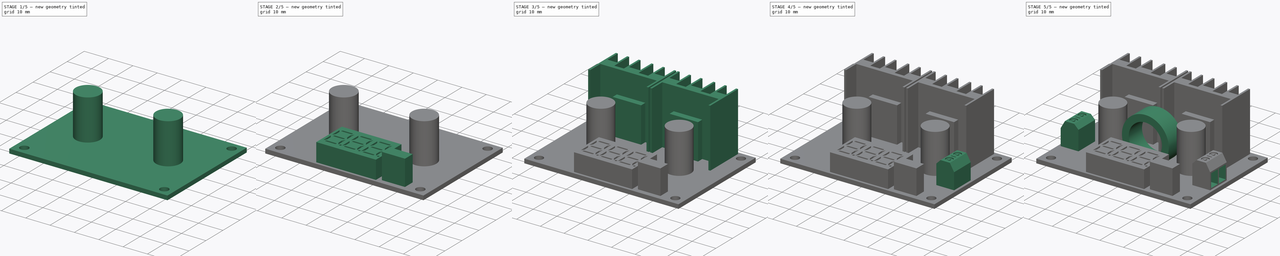
[diagram: build sequence overview — one tinted view per stage of 5, left to right]
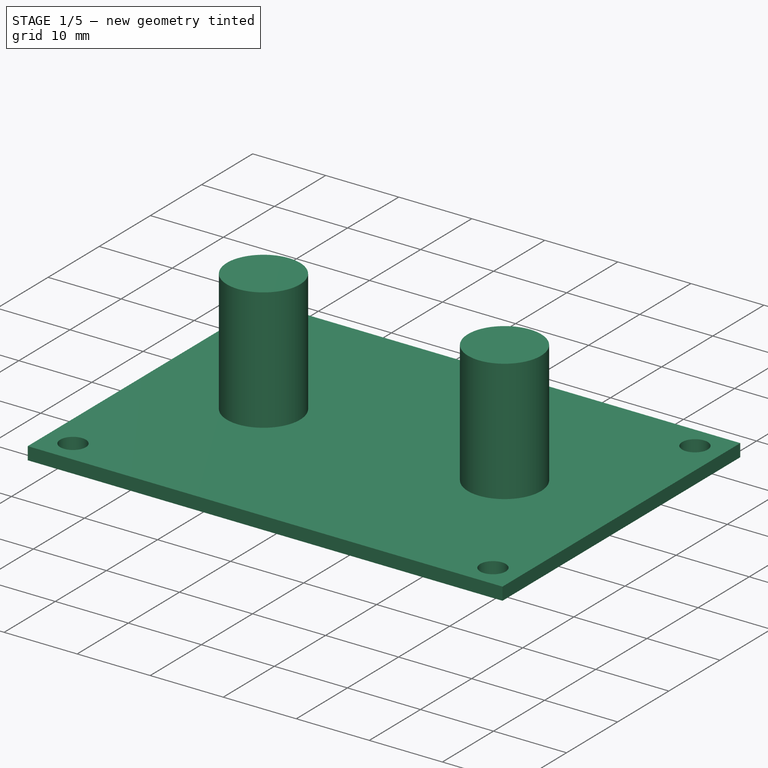
[diagram: stage 1 of 5 — iso view after this stage's code; geometry added in this stage tinted green]
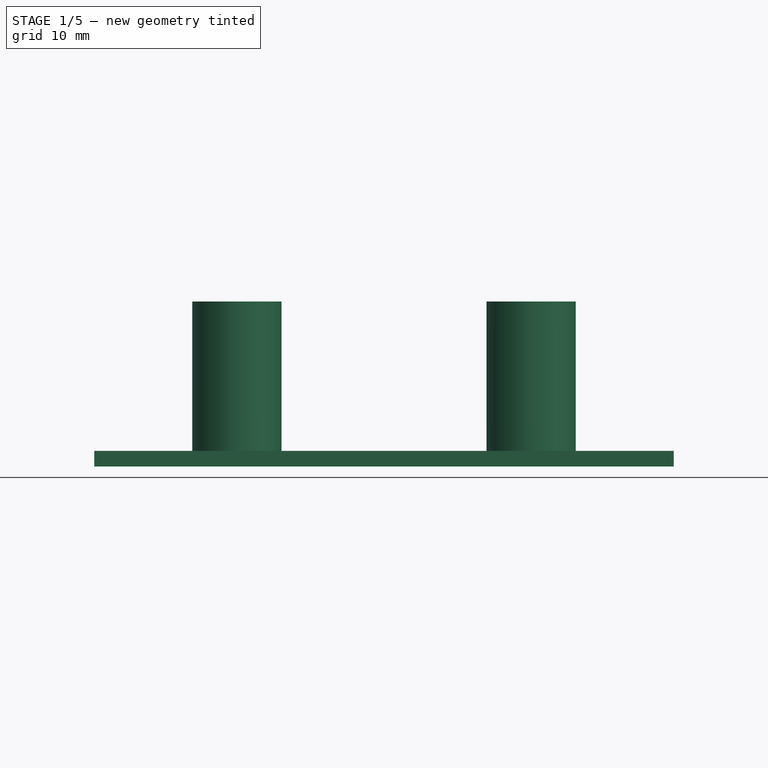
[diagram: stage 1 of 5 — front view after this stage's code; geometry added in this stage tinted green]
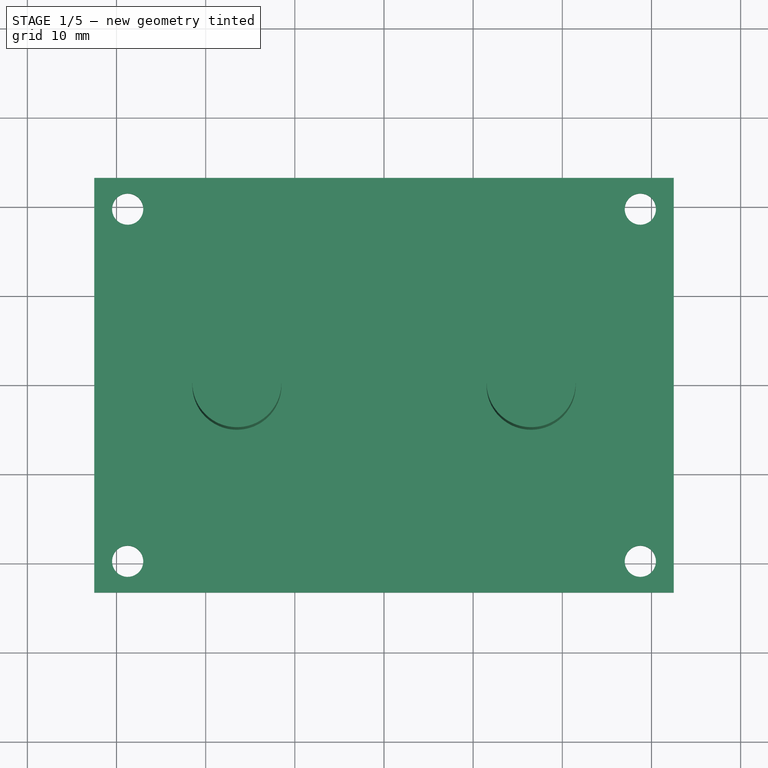
[diagram: stage 1 of 5 — top view after this stage's code; geometry added in this stage tinted green]
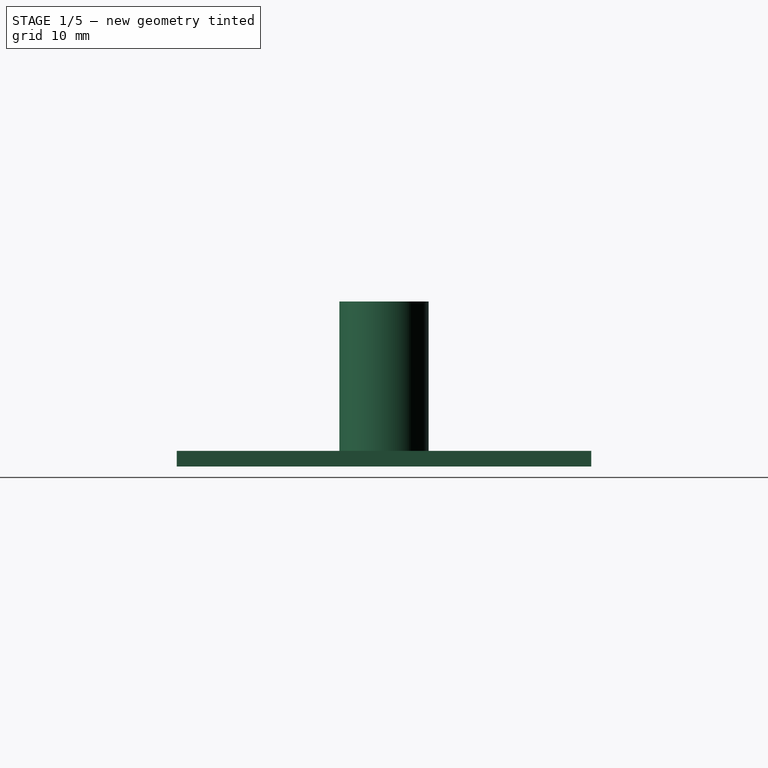
[diagram: stage 1 of 5 — right view after this stage's code; geometry added in this stage tinted green]
FCSTD DOCUMENT  (FreeCAD 1.0R39109 (Git))
Label: regulator_2
License: All rights reserved
LicenseURL: https://en.wikipedia.org/wiki/All_rights_reserved
objects: Sketcher::SketchObject×14, PartDesign::Pad×8, PartDesign::Pocket×6, PartDesign::Mirrored×2, PartDesign::LinearPattern×1, PartDesign::Body×1
note: 77 computed .brp shape members not serialized (recipe doc carries the construction recipe); baked Part::Feature solids carry a one-line shape summary decoded from their .brp

FEATURE [Sketcher::SketchObject] Sketch
  ArcFitTolerance = 1e-06
  AttachmentSupport = -> [XY_Plane]
  FullyConstrained = true
  MakeInternals = false
  MapMode = 5
  sketch-geometry (5):
    g0: LineSegment StartX=-32.5 StartY=23.25 StartZ=0 EndX=-32.5 EndY=-23.25 EndZ=0
    g1: LineSegment StartX=-32.5 StartY=-23.25 StartZ=0 EndX=32.5 EndY=-23.25 EndZ=0
    g2: LineSegment StartX=32.5 StartY=-23.25 StartZ=0 EndX=32.5 EndY=23.25 EndZ=0
    g3: LineSegment StartX=32.5 StartY=23.25 StartZ=0 EndX=-32.5 EndY=23.25 EndZ=0
    g4: GeomPoint [constr] X=0 Y=0 Z=0
  constraints (12):
    c: Coincident(g0,g1)
    c: Coincident(g1,g2)
    c: Coincident(g2,g3)
    c: Coincident(g3,g0)
    c: Vertical(g0)
    c: Vertical(g2)
    c: Horizontal(g1)
    c: Horizontal(g3)
    c: Symmetric(g2,g0,g4)
    c: Coincident(g4,g-1)
    c: DistanceX(g1,g1) = 65
    c: DistanceY(g2,g2) = 46.5
FEATURE [PartDesign::Pad] Pad
  Direction = (0,0,1)
  Length = 1.75
  Length2 = 10
  Profile = -> Sketch
  ReferenceAxis = -> Sketch [N_Axis]
  Refine = true
  Suppressed = false
  Type = 0
FEATURE [Sketcher::SketchObject] Sketch001
  ArcFitTolerance = 1e-06
  AttachmentSupport = -> [Pad]
  ExternalGeometry = -> [Pad]
  FullyConstrained = true
  MakeInternals = false
  MapMode = 5
  Placement = pos=(0,0,1.75) rot=(0,0,1;0rad)
  sketch-geometry (5):
    g0: Circle CenterX=-28.75 CenterY=19.75 CenterZ=0 NormalX=0 NormalY=0 NormalZ=1 AngleXU=0 Radius=1.75
    g1: Circle CenterX=28.75 CenterY=19.75 CenterZ=0 NormalX=0 NormalY=0 NormalZ=1 AngleXU=0 Radius=1.75
    g2: Circle CenterX=-28.75 CenterY=-19.75 CenterZ=0 NormalX=0 NormalY=0 NormalZ=1 AngleXU=0 Radius=1.75
    g3: Circle CenterX=28.75 CenterY=-19.75 CenterZ=0 NormalX=0 NormalY=0 NormalZ=1 AngleXU=0 Radius=1.75
    g4: GeomPoint X=-28.75 Y=21.5 Z=0
  constraints (13):
    c: Vertical(g2,g0)
    c: Horizontal(g2,g3)
    c: Vertical(g3,g1)
    c: Horizontal(g1,g0)
    c: Equal(g0,g2)
    c: Equal(g0,g3)
    c: Radius(g0) = 1.75
    c: Equal(g1,g0)
    c: DistanceX(g0,g1) = 57.5
    c: PointOnObject(g4,g0)
    c: Vertical(g0,g4)
    c: DistanceY(g4,g-3) = 1.75
    c: Symmetric(g0,g3,g-1)
FEATURE [PartDesign::Pocket] Pocket
  BaseFeature = -> Pad
  Direction = (0,0,-1)
  Length = 5
  Length2 = 5
  Profile = -> Sketch001
  ReferenceAxis = -> Sketch001 [N_Axis]
  Refine = true
  Suppressed = false
  Type = 1
FEATURE [Sketcher::SketchObject] Sketch002
  ArcFitTolerance = 1e-06
  AttachmentSupport = -> [Pocket]
  ExternalGeometry = -> [Pocket]
  FullyConstrained = true
  MakeInternals = false
  MapMode = 5
  Placement = pos=(0,0,1.75) rot=(0,0,1;0rad)
  sketch-geometry (2):
    g0: Circle CenterX=-16.5 CenterY=0 CenterZ=0 NormalX=0 NormalY=0 NormalZ=1 AngleXU=0 Radius=5
    g1: Circle CenterX=16.5 CenterY=0 CenterZ=0 NormalX=0 NormalY=0 NormalZ=1 AngleXU=0 Radius=5
  constraints (5):
    c: PointOnObject(g0,g-1)
    c: Equal(g1,g0)
    c: Symmetric(g0,g1,g-1)
    c: Radius(g1) = 5
    c: DistanceX(g1,g-3) = 16
FEATURE [PartDesign::Pad] Pad001
  BaseFeature = -> Pocket
  Direction = (0,0,1)
  Length = 16.75
  Length2 = 10
  Profile = -> Sketch002
  ReferenceAxis = -> Sketch002 [N_Axis]
  Refine = true
  Suppressed = false
  Type = 0
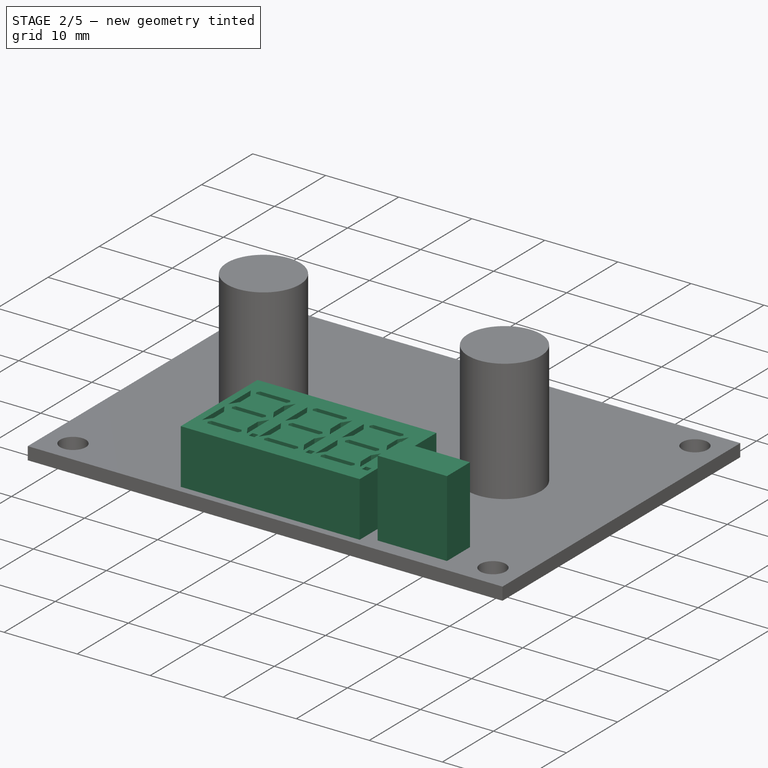
[diagram: stage 2 of 5 — iso view after this stage's code; geometry added in this stage tinted green]
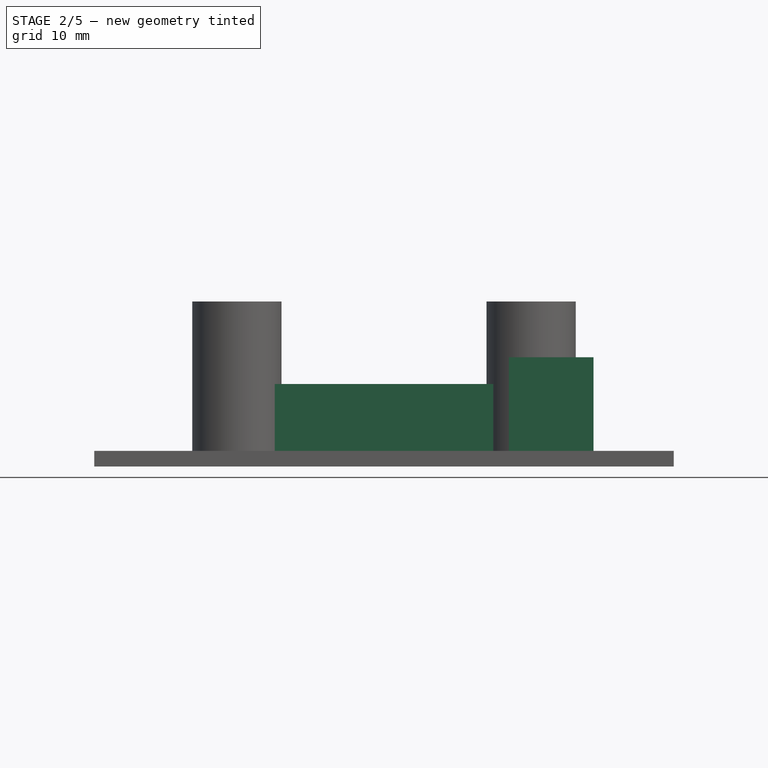
[diagram: stage 2 of 5 — front view after this stage's code; geometry added in this stage tinted green]
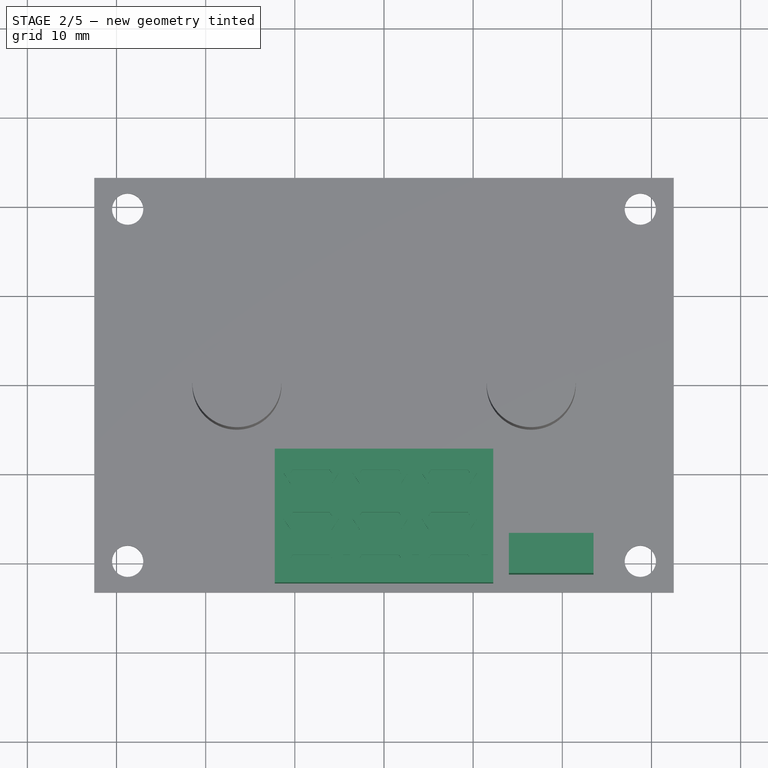
[diagram: stage 2 of 5 — top view after this stage's code; geometry added in this stage tinted green]
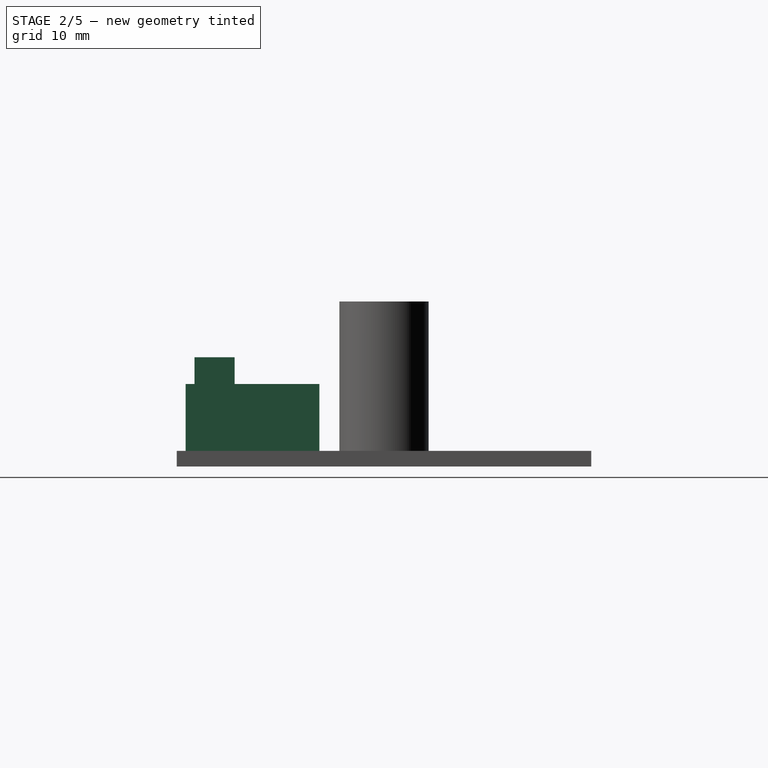
[diagram: stage 2 of 5 — right view after this stage's code; geometry added in this stage tinted green]
FEATURE [Sketcher::SketchObject] Sketch003
  ArcFitTolerance = 1e-06
  AttachmentSupport = -> [Pad001]
  ExternalGeometry = -> [Pad001]
  FullyConstrained = true
  MakeInternals = false
  MapMode = 5
  Placement = pos=(0,0,1.75) rot=(0,0,1;0rad)
  sketch-geometry (4):
    g0: LineSegment StartX=14 StartY=-16.75 StartZ=0 EndX=14 EndY=-21.25 EndZ=0
    g1: LineSegment StartX=14 StartY=-21.25 StartZ=0 EndX=23.5 EndY=-21.25 EndZ=0
    g2: LineSegment StartX=23.5 StartY=-21.25 StartZ=0 EndX=23.5 EndY=-16.75 EndZ=0
    g3: LineSegment StartX=23.5 StartY=-16.75 StartZ=0 EndX=14 EndY=-16.75 EndZ=0
  constraints (12):
    c: Coincident(g0,g1)
    c: Coincident(g1,g2)
    c: Coincident(g2,g3)
    c: Coincident(g3,g0)
    c: Vertical(g0)
    c: Vertical(g2)
    c: Horizontal(g1)
    c: Horizontal(g3)
    c: DistanceY(g2,g2) = 4.5
    c: DistanceX(g3,g3) = 9.5
    c: DistanceX(g2,g-3) = 9
    c: DistanceY(g-3,g1) = 2
FEATURE [PartDesign::Pad] Pad002
  BaseFeature = -> Pad001
  Direction = (0,0,1)
  Length = 10.5
  Length2 = 10
  Profile = -> Sketch003
  ReferenceAxis = -> Sketch003 [N_Axis]
  Refine = true
  Suppressed = false
  Type = 0
FEATURE [Sketcher::SketchObject] Sketch004
  ArcFitTolerance = 1e-06
  AttachmentSupport = -> [Pad002]
  ExternalGeometry = -> [Pad002]
  FullyConstrained = true
  MakeInternals = false
  MapMode = 5
  Placement = pos=(0,0,1.75) rot=(0,0,1;0rad)
  sketch-geometry (4):
    g0: LineSegment StartX=-12.25 StartY=-7.25 StartZ=0 EndX=-12.25 EndY=-22.25 EndZ=0
    g1: LineSegment StartX=-12.25 StartY=-22.25 StartZ=0 EndX=12.25 EndY=-22.25 EndZ=0
    g2: LineSegment StartX=12.25 StartY=-22.25 StartZ=0 EndX=12.25 EndY=-7.25 EndZ=0
    g3: LineSegment StartX=12.25 StartY=-7.25 StartZ=0 EndX=-12.25 EndY=-7.25 EndZ=0
  constraints (11):
    c: Coincident(g0,g1)
    c: Coincident(g1,g2)
    c: Coincident(g2,g3)
    c: Coincident(g3,g0)
    c: Vertical(g0)
    c: Vertical(g2)
    c: Horizontal(g3)
    c: DistanceY(g2,g2) = 15
    c: DistanceX(g1,g1) = 24.5
    c: Symmetric(g1,g0,g-2)
    c: DistanceY(g-3,g1) = 1
FEATURE [PartDesign::Pad] Pad003
  BaseFeature = -> Pad002
  Direction = (0,0,1)
  Length = 7.5
  Length2 = 10
  Profile = -> Sketch004
  ReferenceAxis = -> Sketch004 [N_Axis]
  Refine = true
  Suppressed = false
  Type = 0
FEATURE [Sketcher::SketchObject] Sketch005
  ArcFitTolerance = 1e-06
  AttachmentSupport = -> [Pad003]
  ExternalGeometry = -> [Pad003]
  FullyConstrained = true
  MakeInternals = false
  MapMode = 5
  Placement = pos=(0,0,9.25) rot=(0,0,1;0rad)
  sketch-geometry (48):
    g0: LineSegment [constr] StartX=-12.25 StartY=-22.25 StartZ=0 EndX=-4.08333 EndY=-22.25 EndZ=0
    g1: LineSegment [constr] StartX=-4.08333 StartY=-22.25 StartZ=0 EndX=4.08333 EndY=-22.25 EndZ=0
    g2: LineSegment [constr] StartX=4.08333 StartY=-22.25 StartZ=0 EndX=12.25 EndY=-22.25 EndZ=0
    g3: GeomPoint X=-8.16667 Y=-22.25 Z=0
    g4: LineSegment StartX=-10.2292 StartY=-9.60428 StartZ=0 EndX=-10.4793 EndY=-9.98964 EndZ=0
    g5: LineSegment StartX=-10.4793 StartY=-9.98964 StartZ=0 EndX=-10.2292 EndY=-10.375 EndZ=0
    g6: LineSegment StartX=-10.2292 StartY=-10.375 StartZ=0 EndX=-6.10417 EndY=-10.375 EndZ=0
    g7: LineSegment StartX=-6.10417 StartY=-10.375 StartZ=0 EndX=-5.85406 EndY=-9.98964 EndZ=0
    g8: LineSegment StartX=-5.85406 StartY=-9.98964 StartZ=0 EndX=-6.10417 EndY=-9.60428 EndZ=0
    g9: LineSegment StartX=-6.10417 StartY=-9.60428 StartZ=0 EndX=-10.2292 EndY=-9.60428 EndZ=0
    g10: LineSegment StartX=-11.25 StartY=-9.98964 StartZ=0 EndX=-10.4793 EndY=-11.1771 EndZ=0
    g11: LineSegment StartX=-10.4793 StartY=-11.1771 StartZ=0 EndX=-10.4793 EndY=-13.1771 EndZ=0
    g12: LineSegment StartX=-10.4793 StartY=-13.1771 StartZ=0 EndX=-11.25 EndY=-14.3646 EndZ=0
    g13: LineSegment StartX=-11.25 StartY=-14.3646 StartZ=0 EndX=-11.25 EndY=-9.98964 EndZ=0
    g14: LineSegment StartX=-5.85406 StartY=-11.1771 StartZ=0 EndX=-5.85406 EndY=-13.1771 EndZ=0
    g15: LineSegment StartX=-5.85406 StartY=-13.1771 StartZ=0 EndX=-5.08333 EndY=-14.3646 EndZ=0
    g16: LineSegment StartX=-5.08333 StartY=-14.3646 StartZ=0 EndX=-5.08333 EndY=-9.98964 EndZ=0
    g17: LineSegment StartX=-5.08333 StartY=-9.98964 StartZ=0 EndX=-5.85406 EndY=-11.1771 EndZ=0
    g18: LineSegment StartX=-10.4793 StartY=-14.75 StartZ=0 EndX=-10.2292 EndY=-14.3646 EndZ=0
    g19: LineSegment StartX=-10.2292 StartY=-14.3646 StartZ=0 EndX=-6.10417 EndY=-14.3646 EndZ=0
    g20: LineSegment StartX=-6.10417 StartY=-14.3646 StartZ=0 EndX=-5.85406 EndY=-14.75 EndZ=0
    g21: LineSegment StartX=-5.85406 StartY=-14.75 StartZ=0 EndX=-6.10417 EndY=-15.1354 EndZ=0
    g22: LineSegment StartX=-6.10417 StartY=-15.1354 StartZ=0 EndX=-10.2292 EndY=-15.1354 EndZ=0
    g23: LineSegment StartX=-10.2292 StartY=-15.1354 StartZ=0 EndX=-10.4793 EndY=-14.75 EndZ=0
    g24: LineSegment StartX=-11.25 StartY=-15.1354 StartZ=0 EndX=-11.25 EndY=-19.5104 EndZ=0
    g25: LineSegment StartX=-11.25 StartY=-19.5104 StartZ=0 EndX=-10.4793 EndY=-18.3229 EndZ=0
    g26: LineSegment StartX=-10.4793 StartY=-18.3229 StartZ=0 EndX=-10.4793 EndY=-16.3229 EndZ=0
    g27: LineSegment StartX=-10.4793 StartY=-16.3229 StartZ=0 EndX=-11.25 EndY=-15.1354 EndZ=0
    g28: LineSegment StartX=-5.85406 StartY=-16.3229 StartZ=0 EndX=-5.85406 EndY=-18.3229 EndZ=0
    g29: LineSegment StartX=-5.85406 StartY=-18.3229 StartZ=0 EndX=-5.08333 EndY=-19.5104 EndZ=0
    g30: LineSegment StartX=-5.08333 StartY=-19.5104 StartZ=0 EndX=-5.08333 EndY=-15.1354 EndZ=0
    g31: LineSegment StartX=-5.08333 StartY=-15.1354 StartZ=0 EndX=-5.85406 EndY=-16.3229 EndZ=0
    g32: LineSegment StartX=-10.4793 StartY=-19.5104 StartZ=0 EndX=-10.2292 EndY=-19.125 EndZ=0
    g33: LineSegment StartX=-10.2292 StartY=-19.125 StartZ=0 EndX=-6.10417 EndY=-19.125 EndZ=0
    g34: LineSegment StartX=-6.10417 StartY=-19.125 StartZ=0 EndX=-5.85406 EndY=-19.5104 EndZ=0
    g35: LineSegment StartX=-5.85406 StartY=-19.5104 StartZ=0 EndX=-6.10417 EndY=-19.8957 EndZ=0
    g36: LineSegment StartX=-6.10417 StartY=-19.8957 StartZ=0 EndX=-10.2292 EndY=-19.8957 EndZ=0
    g37: LineSegment StartX=-10.2292 StartY=-19.8957 StartZ=0 EndX=-10.4793 EndY=-19.5104 EndZ=0
    g38: LineSegment [constr] StartX=-6.10417 StartY=-15.1354 StartZ=0 EndX=-6.10417 EndY=-14.3646 EndZ=0
    g39: LineSegment [constr] StartX=-6.10417 StartY=-10.375 StartZ=0 EndX=-6.10417 EndY=-9.60428 EndZ=0
    g40: LineSegment [constr] StartX=-6.10417 StartY=-19.125 StartZ=0 EndX=-6.10417 EndY=-19.8957 EndZ=0
    g41: LineSegment [constr] StartX=-5.85406 StartY=-16.3229 StartZ=0 EndX=-5.08333 EndY=-16.3229 EndZ=0
    g42: GeomPoint [constr] X=-8.16667 Y=-19.8957 Z=0
    g43: GeomPoint [constr] X=-12.25 Y=-14.75 Z=0
    g44: LineSegment StartX=-4.58333 StartY=-19.125 StartZ=0 EndX=-4.58333 EndY=-19.8957 EndZ=0
    g45: LineSegment StartX=-4.58333 StartY=-19.8957 StartZ=0 EndX=-3.81261 EndY=-19.8957 EndZ=0
    g46: LineSegment StartX=-3.81261 StartY=-19.8957 StartZ=0 EndX=-3.81261 EndY=-19.125 EndZ=0
    g47: LineSegment StartX=-3.81261 StartY=-19.125 StartZ=0 EndX=-4.58333 EndY=-19.125 EndZ=0
  constraints (134):
    c: Coincident(g-3,g0)
    c: PointOnObject(g0,g-3)
    c: Coincident(g0,g1)
    c: PointOnObject(g1,g-3)
    c: Coincident(g1,g2)
    c: Coincident(g2,g-3)
    c: Equal(g0,g1)
    c: Equal(g2,g1)
    c: Symmetric(g0,g0,g3)
    c: Coincident(g4,g5)
    c: Coincident(g5,g6)
    c: Horizontal(g6)
    c: Coincident(g6,g7)
    c: Coincident(g7,g8)
    c: Coincident(g8,g9)
    c: Coincident(g9,g4)
    c: Horizontal(g9)
    c: Coincident(g10,g11)
    c: Coincident(g11,g12)
    c: Coincident(g12,g13)
    c: Coincident(g13,g10)
    c: Vertical(g14)
    c: Coincident(g14,g15)
    c: Coincident(g15,g16)
    c: Coincident(g16,g17)
    c: Coincident(g17,g14)
    c: Coincident(g18,g19)
    c: Horizontal(g19)
    c: Coincident(g19,g20)
    c: Coincident(g20,g21)
    c: Coincident(g21,g22)
    c: Coincident(g22,g23)
    c: Coincident(g23,g18)
    c: Vertical(g24)
    c: Coincident(g24,g25)
    c: Coincident(g25,g26)
    c: Coincident(g26,g27)
    c: Coincident(g27,g24)
    c: Coincident(g28,g29)
    c: Coincident(g29,g30)
    c: Coincident(g30,g31)
    c: Coincident(g31,g28)
    c: Coincident(g32,g33)
    c: Horizontal(g33)
    c: Coincident(g33,g34)
    c: Coincident(g34,g35)
    c: Coincident(g35,g36)
    c: Coincident(g36,g37)
    c: Coincident(g37,g32)
    c: Equal(g33,g36)
    c: Equal(g36,g22)
    c: Equal(g22,g19)
    c: Equal(g19,g6)
    c: Equal(g6,g9)
    c: Horizontal(g36)
    c: Horizontal(g22)
    c: Vertical(g26)
    c: Vertical(g28)
    c: Vertical(g30)
    c: Vertical(g16)
    c: Vertical(g11,g10)
    c: Vertical(g13)
    c: Vertical(g24,g12)
    c: Vertical(g11,g26)
    c: Vertical(g28,g14)
    c: Vertical(g15,g30)
    c: Vertical(g5,g18)
    c: Vertical(g22,g18)
    c: Vertical(g22,g32)
    c: Vertical(g36,g32)
    c: Vertical(g8,g6)
    c: Equal(g34,g35)
    c: Equal(g35,g32)
    c: Equal(g32,g37)
    c: Equal(g37,g21)
    c: Equal(g21,g23)
    c: Equal(g23,g18)
    c: Equal(g18,g20)
    c: Equal(g20,g7)
    c: Equal(g7,g8)
    c: Equal(g8,g4)
    c: Equal(g4,g5)
    c: Parallel(g12,g17)
    c: Parallel(g25,g12)
    c: Parallel(g12,g31)
    c: Parallel(g27,g29)
    c: Parallel(g29,g15)
    c: Parallel(g15,g10)
    c: Parallel(g10,g5)
    c: Parallel(g32,g25)
    c: Parallel(g35,g4)
    c: Coincident(g38,g21)
    c: Coincident(g38,g19)
    c: Coincident(g39,g6)
    c: Coincident(g39,g8)
    c: Coincident(g40,g33)
    c: Coincident(g40,g35)
    c: Equal(g40,g38)
    c: Horizontal(g15,g12)
    c: Horizontal(g11,g14)
    c: Horizontal(g14,g10)
    c: Horizontal(g26,g28)
    c: Vertical(g25,g32)
    c: Vertical(g28,g34)
    c: Coincident(g41,g28)
    c: PointOnObject(g41,g30)
    c: Horizontal(g41)
    c: Equal(g41,g38)
    c: Symmetric(g36,g36,g42)
    c: Vertical(g3,g42)
    c: Horizontal(g25,g28)
    c: Horizontal(g29,g34)
    c: Horizontal(g4,g10)
    c: Horizontal(g19,g15)
    c: Equal(g30,g16)
    c: Symmetric(g-4,g-4,g43)
    c: Horizontal(g43,g18)
    c: DistanceX(g36,g36) = 4.125
    c: DistanceY(g24,g24) = 4.375
    c: DistanceX(g29,g0) = 1
    c: DistanceY(g26,g26) = 2
    c: Horizontal(g21,g30)
    c: Coincident(g44,g45)
    c: Coincident(g45,g46)
    c: Coincident(g46,g47)
    c: Coincident(g47,g44)
    c: Vertical(g44)
    c: Vertical(g46)
    c: Horizontal(g45)
    c: Horizontal(g47)
    c: Equal(g45,g46)
    c: DistanceX(g29,g44) = 0.5
    c: Equal(g40,g44)
    c: Horizontal(g44,g35)
FEATURE [PartDesign::Pocket] Pocket001
  BaseFeature = -> Pad003
  Direction = (0,0,-1)
  Length = 1
  Length2 = 5
  Profile = -> Sketch005
  ReferenceAxis = -> Sketch005 [N_Axis]
  Refine = true
  Suppressed = false
  Type = 0
FEATURE [PartDesign::LinearPattern] LinearPattern
  BaseFeature = -> Pocket001
  Direction = -> Sketch005 [H_Axis]
  Length = 15.5
  Mode = 1
  Occurrences = 3
  Offset = 7.75
  Originals = -> [Pocket001]
  Refine = true
  Suppressed = false
  TransformMode = 0
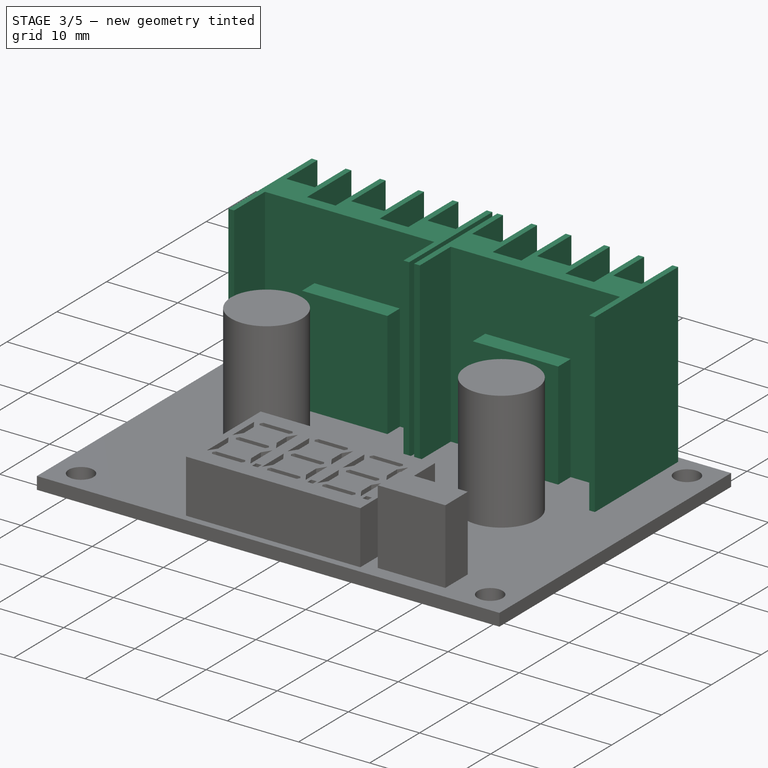
[diagram: stage 3 of 5 — iso view after this stage's code; geometry added in this stage tinted green]
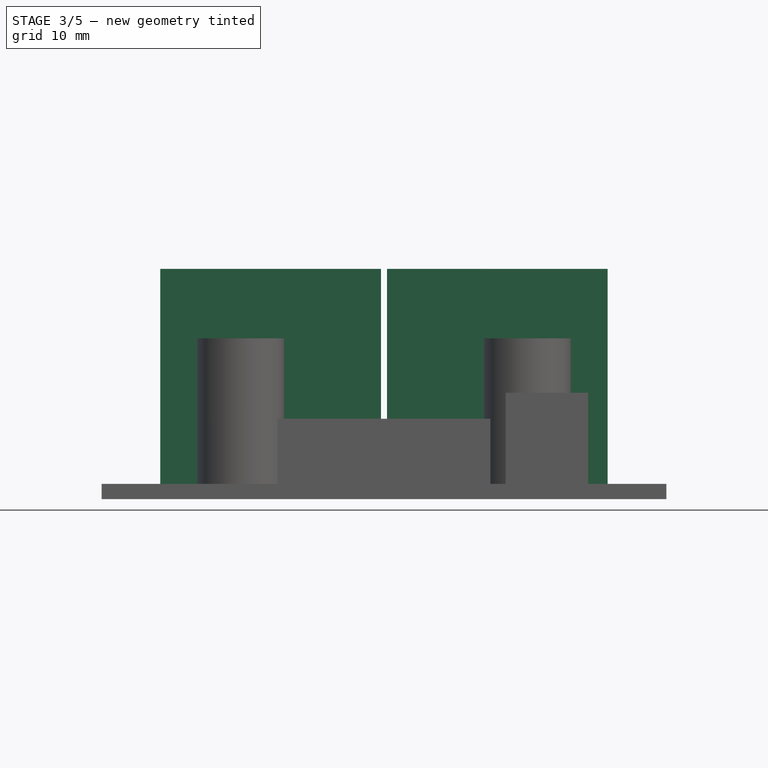
[diagram: stage 3 of 5 — front view after this stage's code; geometry added in this stage tinted green]
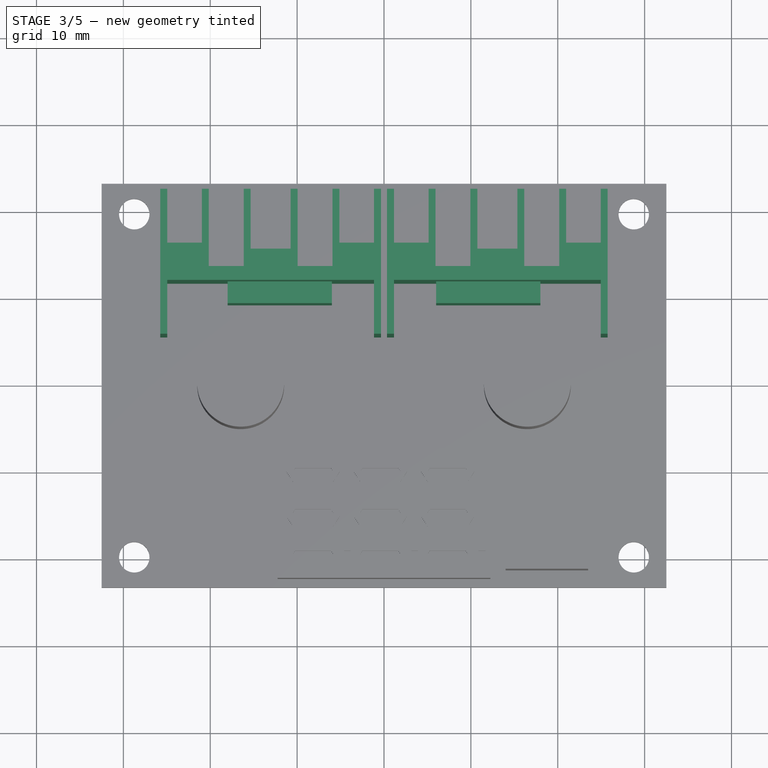
[diagram: stage 3 of 5 — top view after this stage's code; geometry added in this stage tinted green]
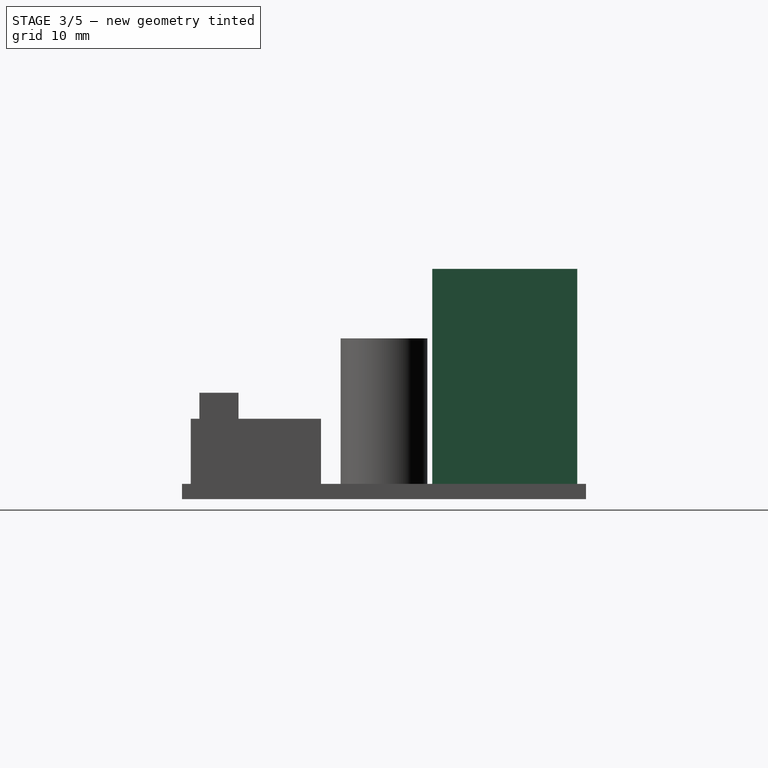
[diagram: stage 3 of 5 — right view after this stage's code; geometry added in this stage tinted green]
FEATURE [Sketcher::SketchObject] Sketch006
  ArcFitTolerance = 1e-06
  AttachmentSupport = -> [LinearPattern]
  ExternalGeometry = -> [LinearPattern]
  FullyConstrained = true
  MakeInternals = false
  MapMode = 5
  Placement = pos=(0,0,1.75) rot=(0,0,1;0rad)
  sketch-geometry (29):
    g0: GeomPoint X=25.75 Y=22.25 Z=0
    g1: LineSegment StartX=25.75 StartY=5.55 StartZ=0 EndX=25.75 EndY=22.25 EndZ=0
    g2: LineSegment StartX=25.75 StartY=22.25 StartZ=0 EndX=24.95 EndY=22.25 EndZ=0
    g3: LineSegment StartX=24.95 StartY=22.25 StartZ=0 EndX=24.95 EndY=16.05 EndZ=0
    g4: LineSegment StartX=24.95 StartY=16.05 StartZ=0 EndX=20.97 EndY=16.05 EndZ=0
    g5: LineSegment StartX=20.97 StartY=16.05 StartZ=0 EndX=20.97 EndY=22.25 EndZ=0
    g6: LineSegment StartX=20.97 StartY=22.25 StartZ=0 EndX=20.17 EndY=22.25 EndZ=0
    g7: LineSegment StartX=5.93 StartY=13.35 StartZ=0 EndX=5.93 EndY=22.25 EndZ=0
    g8: LineSegment StartX=5.93 StartY=22.25 StartZ=0 EndX=5.13 EndY=22.25 EndZ=0
    g9: LineSegment StartX=5.13 StartY=22.25 StartZ=0 EndX=5.13 EndY=16.05 EndZ=0
    g10: LineSegment StartX=5.13 StartY=16.05 StartZ=0 EndX=1.15 EndY=16.05 EndZ=0
    g11: LineSegment StartX=1.15 StartY=16.05 StartZ=0 EndX=1.15 EndY=22.25 EndZ=0
    g12: LineSegment StartX=1.15 StartY=22.25 StartZ=0 EndX=0.35 EndY=22.25 EndZ=0
    g13: LineSegment StartX=0.35 StartY=22.25 StartZ=0 EndX=0.35 EndY=5.55 EndZ=0
    g14: LineSegment StartX=0.35 StartY=5.55 StartZ=0 EndX=1.15 EndY=5.55 EndZ=0
    g15: LineSegment StartX=1.15 StartY=5.55 StartZ=0 EndX=1.15 EndY=11.75 EndZ=0
    g16: LineSegment StartX=1.15 StartY=11.75 StartZ=0 EndX=24.95 EndY=11.75 EndZ=0
    g17: LineSegment StartX=24.95 StartY=11.75 StartZ=0 EndX=24.95 EndY=5.55 EndZ=0
    g18: LineSegment StartX=24.95 StartY=5.55 StartZ=0 EndX=25.75 EndY=5.55 EndZ=0
    g19: LineSegment StartX=5.93 StartY=13.35 StartZ=0 EndX=9.95 EndY=13.35 EndZ=0
    g20: LineSegment StartX=9.95 StartY=13.35 StartZ=0 EndX=9.95 EndY=22.25 EndZ=0
    g21: LineSegment StartX=9.95 StartY=22.25 StartZ=0 EndX=10.75 EndY=22.25 EndZ=0
    g22: LineSegment StartX=10.75 StartY=22.25 StartZ=0 EndX=10.75 EndY=15.35 EndZ=0
    g23: LineSegment StartX=10.75 StartY=15.35 StartZ=0 EndX=15.35 EndY=15.35 EndZ=0
    g24: LineSegment StartX=15.35 StartY=15.35 StartZ=0 EndX=15.35 EndY=22.25 EndZ=0
    g25: LineSegment StartX=15.35 StartY=22.25 StartZ=0 EndX=16.15 EndY=22.25 EndZ=0
    g26: LineSegment StartX=16.15 StartY=22.25 StartZ=0 EndX=16.15 EndY=13.35 EndZ=0
    g27: LineSegment StartX=16.15 StartY=13.35 StartZ=0 EndX=20.17 EndY=13.35 EndZ=0
    g28: LineSegment StartX=20.17 StartY=13.35 StartZ=0 EndX=20.17 EndY=22.25 EndZ=0
  constraints (85):
    c: DistanceX(g0,g-3) = 6.75
    c: Coincident(g1,g0)
    c: Coincident(g1,g2)
    c: Coincident(g2,g3)
    c: Coincident(g3,g4)
    c: Coincident(g4,g5)
    c: Vertical(g5)
    c: Coincident(g5,g6)
    c: Vertical(g7)
    c: Coincident(g7,g8)
    c: Coincident(g8,g9)
    c: Coincident(g9,g10)
    c: Coincident(g10,g11)
    c: Vertical(g11)
    c: Coincident(g11,g12)
    c: Horizontal(g12)
    c: Coincident(g12,g13)
    c: Coincident(g13,g14)
    c: Coincident(g14,g15)
    c: Coincident(g15,g16)
    c: Coincident(g16,g17)
    c: Coincident(g17,g18)
    c: Coincident(g18,g1)
    c: Horizontal(g18)
    c: Horizontal(g16)
    c: Horizontal(g14)
    c: Horizontal(g8)
    c: Horizontal(g6)
    c: Horizontal(g2)
    c: Vertical(g9)
    c: Vertical(g3)
    c: Vertical(g13)
    c: Vertical(g1)
    c: Vertical(g15)
    c: Vertical(g17)
    c: Horizontal(g17,g14)
    c: Equal(g14,g18)
    c: Horizontal(g10)
    c: Equal(g12,g2)
    c: Equal(g4,g10)
    c: Equal(g8,g6)
    c: Horizontal(g7,g6)
    c: Horizontal(g11,g8)
    c: Horizontal(g2,g5)
    c: Horizontal(g4)
    c: Coincident(g7,g19)
    c: Coincident(g19,g20)
    c: Coincident(g20,g21)
    c: Coincident(g21,g22)
    c: Vertical(g22)
    c: Coincident(g22,g23)
    c: Horizontal(g23)
    c: Coincident(g23,g24)
    c: Coincident(g24,g25)
    c: Coincident(g25,g26)
    c: Coincident(g26,g27)
    c: Coincident(g27,g28)
    c: Coincident(g28,g6)
    c: Horizontal(g27)
    c: Horizontal(g19)
    c: Horizontal(g21)
    c: Horizontal(g25)
    c: Horizontal(g24,g21)
    c: Horizontal(g20,g7)
    c: Vertical(g20)
    c: Vertical(g24)
    c: Vertical(g26)
    c: Equal(g25,g21)
    c: Vertical(g28)
    c: Horizontal(g26,g19)
    c: Equal(g19,g27)
    c: DistanceY(g13,g13) = 16.7
    c: DistanceX(g14,g14) = 0.8
    c: Vertical(g15,g10)
    c: Equal(g25,g6)
    c: Equal(g6,g2)
    c: DistanceX(g13,g1) = 25.4
    c: DistanceX(g10,g10) = 3.98
    c: DistanceX(g23,g23) = 4.6
    c: DistanceY(g3,g3) = 6.2
    c: DistanceY(g28,g28) = 8.9
    c: DistanceY(g24,g24) = 6.9
    c: Horizontal(g9,g4)
    c: Equal(g15,g11)
    c: DistanceY(g0,g-3) = 1
FEATURE [PartDesign::Pad] Pad004
  BaseFeature = -> LinearPattern
  Direction = (0,0,1)
  Length = 24.75
  Length2 = 10
  Profile = -> Sketch006
  ReferenceAxis = -> Sketch006 [N_Axis]
  Refine = true
  Suppressed = false
  Type = 0
FEATURE [Sketcher::SketchObject] Sketch007
  ArcFitTolerance = 1e-06
  AttachmentSupport = -> [Pad004]
  ExternalGeometry = -> [Pad004]
  FullyConstrained = false
  MakeInternals = false
  MapMode = 5
  Placement = pos=(0,11.75,0) rot=(1,0,0;1.5708rad)
  sketch-geometry (4):
    g0: LineSegment StartX=5.99646 StartY=1.75 StartZ=0 EndX=17.9965 EndY=1.75 EndZ=0
    g1: LineSegment StartX=17.9965 StartY=1.75 StartZ=0 EndX=17.9965 EndY=16.75 EndZ=0
    g2: LineSegment StartX=17.9965 StartY=16.75 StartZ=0 EndX=5.99646 EndY=16.75 EndZ=0
    g3: LineSegment StartX=5.99646 StartY=16.75 StartZ=0 EndX=5.99646 EndY=1.75 EndZ=0
  constraints (11):
    c: Coincident(g0,g1)
    c: Coincident(g1,g2)
    c: Coincident(g2,g3)
    c: Coincident(g3,g0)
    c: Horizontal(g0)
    c: Horizontal(g2)
    c: Vertical(g1)
    c: Vertical(g3)
    c: PointOnObject(g0,g-3)
    c: DistanceX(g2,g2) = 12
    c: DistanceY(g1,g1) = 15
FEATURE [PartDesign::Pad] Pad005
  BaseFeature = -> Pad004
  Direction = (0,-1,2e-16)
  Length = 2.5
  Length2 = 10
  Profile = -> Sketch007
  ReferenceAxis = -> Sketch007 [N_Axis]
  Refine = true
  Suppressed = false
  Type = 0
FEATURE [PartDesign::Mirrored] Mirrored
  BaseFeature = -> Pad005
  MirrorPlane = -> Sketch006 [V_Axis]
  Originals = -> [Pad004,Pad005]
  Refine = true
  Suppressed = false
  TransformMode = 0
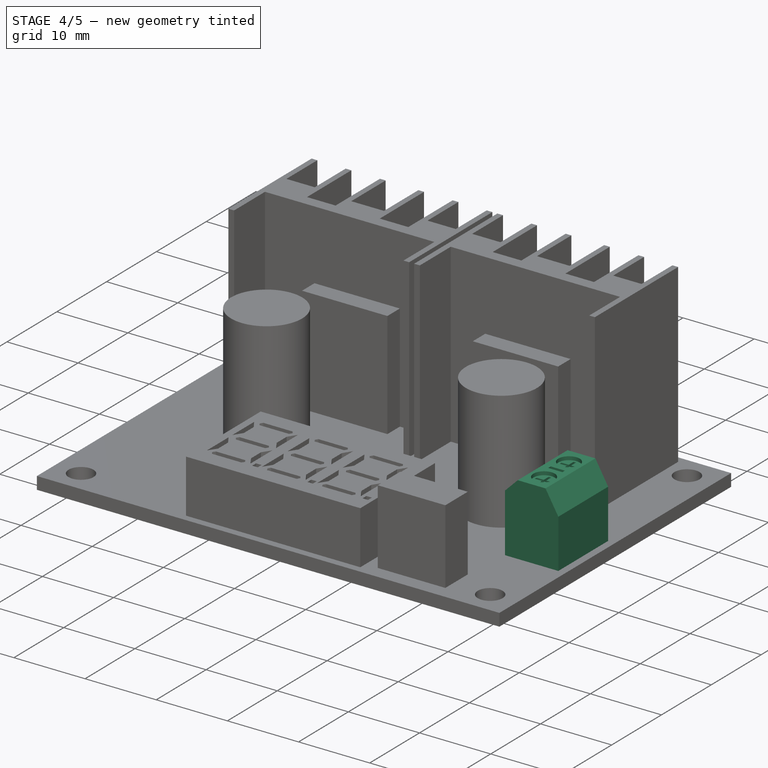
[diagram: stage 4 of 5 — iso view after this stage's code; geometry added in this stage tinted green]
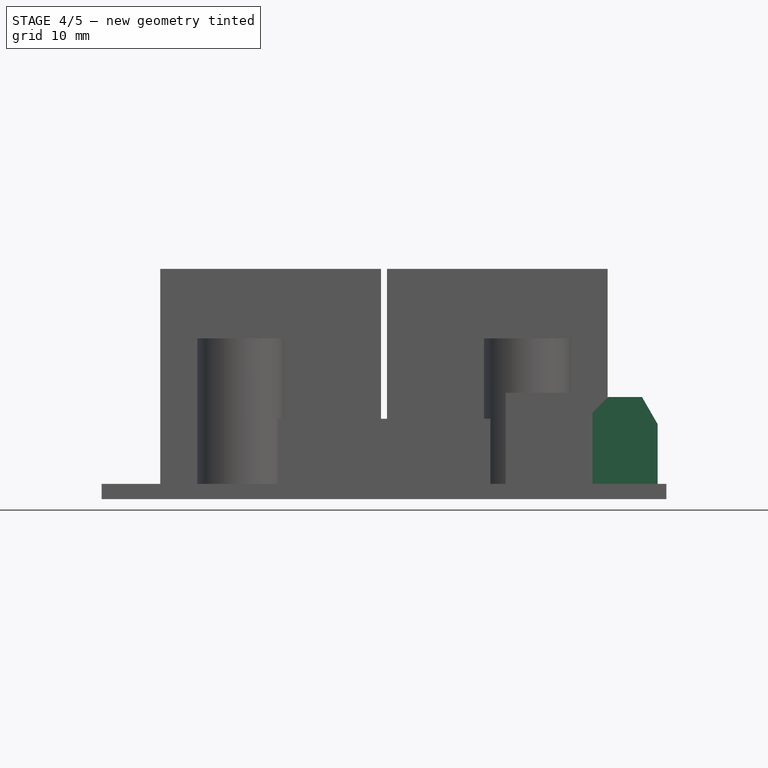
[diagram: stage 4 of 5 — front view after this stage's code; geometry added in this stage tinted green]
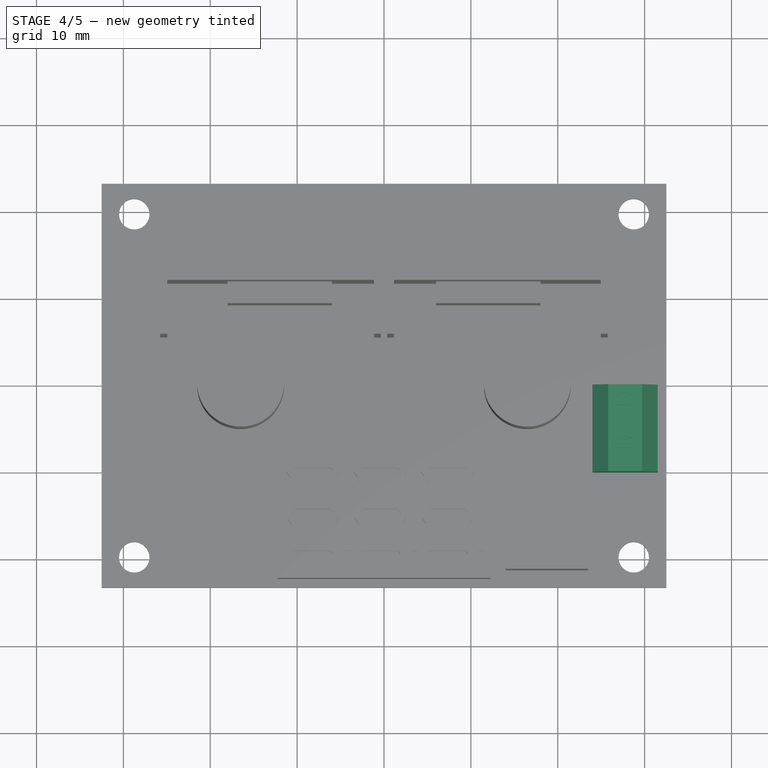
[diagram: stage 4 of 5 — top view after this stage's code; geometry added in this stage tinted green]
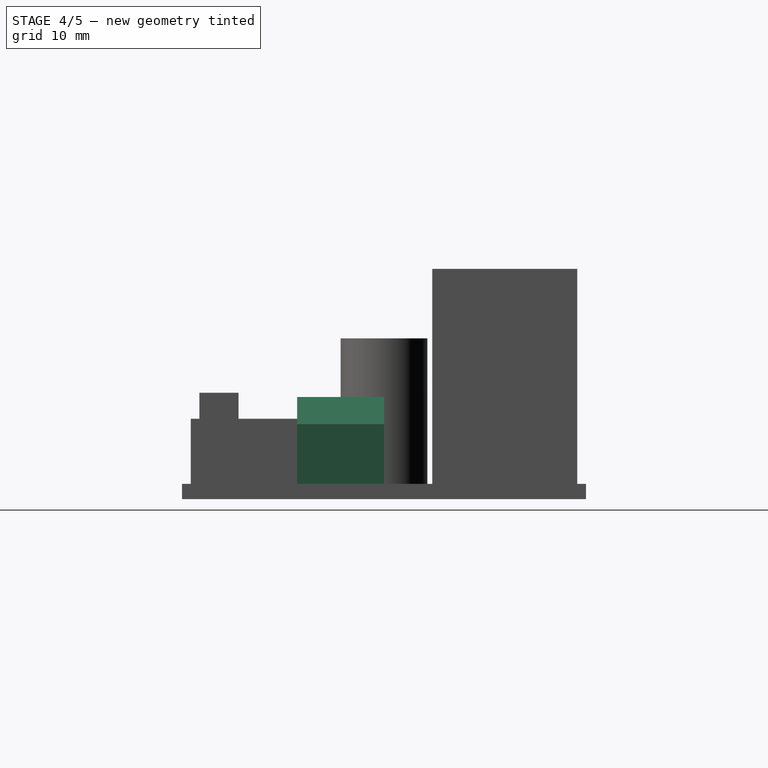
[diagram: stage 4 of 5 — right view after this stage's code; geometry added in this stage tinted green]
FEATURE [Sketcher::SketchObject] Sketch008
  ArcFitTolerance = 1e-06
  AttachmentSupport = -> [Mirrored]
  ExternalGeometry = -> [Mirrored]
  FullyConstrained = true
  MakeInternals = false
  MapMode = 5
  Placement = pos=(0,0,1.75) rot=(0,0,1;0rad)
  sketch-geometry (4):
    g0: LineSegment StartX=24 StartY=0 StartZ=0 EndX=24 EndY=-10 EndZ=0
    g1: LineSegment StartX=24 StartY=-10 StartZ=0 EndX=31.5 EndY=-10 EndZ=0
    g2: LineSegment StartX=31.5 StartY=-10 StartZ=0 EndX=31.5 EndY=0 EndZ=0
    g3: LineSegment StartX=31.5 StartY=0 StartZ=0 EndX=24 EndY=0 EndZ=0
  constraints (12):
    c: Coincident(g0,g1)
    c: Coincident(g1,g2)
    c: Coincident(g2,g3)
    c: Coincident(g3,g0)
    c: Vertical(g0)
    c: Vertical(g2)
    c: Horizontal(g1)
    c: Horizontal(g3)
    c: DistanceX(g1,g1) = 7.5
    c: DistanceY(g0,g0) = 10
    c: PointOnObject(g2,g-1)
    c: DistanceX(g1,g-3) = 1
FEATURE [PartDesign::Pad] Pad006
  BaseFeature = -> Mirrored
  Direction = (0,0,1)
  Length = 10
  Length2 = 10
  Profile = -> Sketch008
  ReferenceAxis = -> Sketch008 [N_Axis]
  Refine = true
  Suppressed = false
  Type = 0
FEATURE [Sketcher::SketchObject] Sketch009
  ArcFitTolerance = 1e-06
  AttachmentSupport = -> [Pad006]
  ExternalGeometry = -> [Pad006]
  FullyConstrained = true
  MakeInternals = false
  MapMode = 5
  Placement = pos=(0,-10,0) rot=(1,0,0;1.5708rad)
  sketch-geometry (10):
    g0: LineSegment [constr] StartX=25.8 StartY=11.75 StartZ=0 EndX=29.7 EndY=11.75 EndZ=0
    g1: LineSegment StartX=29.7 StartY=11.75 StartZ=0 EndX=31.5 EndY=8.63231 EndZ=0
    g2: LineSegment StartX=31.5 StartY=8.63231 StartZ=0 EndX=31.5 EndY=11.75 EndZ=0
    g3: LineSegment StartX=31.5 StartY=11.75 StartZ=0 EndX=29.7 EndY=11.75 EndZ=0
    g4: LineSegment StartX=25.8 StartY=11.75 StartZ=0 EndX=24 EndY=9.95 EndZ=0
    g5: LineSegment StartX=24 StartY=9.95 StartZ=0 EndX=24 EndY=11.75 EndZ=0
    g6: LineSegment StartX=24 StartY=11.75 StartZ=0 EndX=25.8 EndY=11.75 EndZ=0
    g7: GeomPoint X=27.75 Y=1.75 Z=0
    g8: GeomPoint X=27.75 Y=11.75 Z=0
    g9: GeomPoint X=27.75 Y=11.75 Z=0
  constraints (20):
    c: PointOnObject(g0,g-3)
    c: Coincident(g0,g1)
    c: Coincident(g1,g2)
    c: Coincident(g2,g-3)
    c: Vertical(g2)
    c: Coincident(g2,g3)
    c: Coincident(g3,g1)
    c: Coincident(g0,g4)
    c: Coincident(g4,g5)
    c: Coincident(g5,g-3)
    c: Vertical(g5)
    c: Coincident(g5,g6)
    c: Coincident(g6,g4)
    c: DistanceX(g0,g0) = 3.9
    c: Angle(g4,g0) = 2.35619
    c: Angle(g0,g1) = 2.0944
    c: Symmetric(g-4,g-4,g7)
    c: Symmetric(g-3,g-3,g8)
    c: Symmetric(g0,g0,g9)
    c: Coincident(g9,g8)
FEATURE [PartDesign::Pocket] Pocket002
  BaseFeature = -> Pad006
  Direction = (0,1,-2e-16)
  Length = 5
  Length2 = 5
  Profile = -> Sketch009
  ReferenceAxis = -> Sketch009 [N_Axis]
  Refine = true
  Suppressed = false
  Type = 2
FEATURE [Sketcher::SketchObject] Sketch010
  ArcFitTolerance = 1e-06
  AttachmentSupport = -> [Pocket002]
  ExternalGeometry = -> [Pocket002]
  FullyConstrained = true
  MakeInternals = false
  MapMode = 5
  Placement = pos=(0,0,11.75) rot=(0,0,1;0rad)
  sketch-geometry (9):
    g0: Circle CenterX=27.75 CenterY=-2.5 CenterZ=0 NormalX=0 NormalY=0 NormalZ=1 AngleXU=0 Radius=1.5
    g1: Circle CenterX=27.75 CenterY=-7.5 CenterZ=0 NormalX=0 NormalY=0 NormalZ=1 AngleXU=0 Radius=1.5
    g2: LineSegment StartX=26.75 StartY=-4.75 StartZ=0 EndX=26.75 EndY=-5.25 EndZ=0
    g3: LineSegment StartX=26.75 StartY=-5.25 StartZ=0 EndX=28.75 EndY=-5.25 EndZ=0
    g4: LineSegment StartX=28.75 StartY=-5.25 StartZ=0 EndX=28.75 EndY=-4.75 EndZ=0
    g5: LineSegment StartX=28.75 StartY=-4.75 StartZ=0 EndX=26.75 EndY=-4.75 EndZ=0
    g6: GeomPoint X=27.75 Y=-10 Z=0
    g7: GeomPoint X=29.7 Y=-5 Z=0
    g8: GeomPoint X=27.75 Y=-5 Z=0
  constraints (20):
    c: Coincident(g2,g3)
    c: Coincident(g3,g4)
    c: Coincident(g4,g5)
    c: Coincident(g5,g2)
    c: Vertical(g2)
    c: Vertical(g4)
    c: Horizontal(g3)
    c: Horizontal(g5)
    c: Symmetric(g-4,g-4,g6)
    c: Vertical(g6,g1)
    c: Vertical(g0,g1)
    c: Equal(g1,g0)
    c: Radius(g0) = 1.5
    c: Symmetric(g-3,g-3,g7)
    c: Symmetric(g3,g2,g8)
    c: Horizontal(g8,g7)
    c: Symmetric(g1,g0,g8)
    c: DistanceY(g2,g2) = 0.5
    c: DistanceX(g5,g5) = 2
    c: DistanceY(g8,g0) = 2.5
FEATURE [PartDesign::Pocket] Pocket003
  BaseFeature = -> Pocket002
  Direction = (0,0,-1)
  Length = 0.5
  Length2 = 5
  Profile = -> Sketch010
  ReferenceAxis = -> Sketch010 [N_Axis]
  Refine = true
  Suppressed = false
  Type = 0
FEATURE [Sketcher::SketchObject] Sketch011
  ArcFitTolerance = 1e-06
  AttachmentSupport = -> [Pocket003]
  ExternalGeometry = -> [Pocket003]
  FullyConstrained = true
  MakeInternals = false
  MapMode = 5
  Placement = pos=(0,0,11.25) rot=(0,0,1;0rad)
  sketch-geometry (24):
    g0: LineSegment StartX=26.575 StartY=-2.325 StartZ=0 EndX=27.575 EndY=-2.325 EndZ=0
    g1: LineSegment StartX=27.575 StartY=-2.325 StartZ=0 EndX=27.575 EndY=-1.325 EndZ=0
    g2: LineSegment StartX=27.575 StartY=-1.325 StartZ=0 EndX=27.925 EndY=-1.325 EndZ=0
    g3: LineSegment StartX=27.925 StartY=-1.325 StartZ=0 EndX=27.925 EndY=-2.325 EndZ=0
    g4: LineSegment StartX=27.925 StartY=-2.325 StartZ=0 EndX=28.925 EndY=-2.325 EndZ=0
    g5: LineSegment StartX=28.925 StartY=-2.325 StartZ=0 EndX=28.925 EndY=-2.675 EndZ=0
    g6: LineSegment StartX=28.925 StartY=-2.675 StartZ=0 EndX=27.925 EndY=-2.675 EndZ=0
    g7: LineSegment StartX=27.925 StartY=-2.675 StartZ=0 EndX=27.925 EndY=-3.675 EndZ=0
    g8: LineSegment StartX=27.925 StartY=-3.675 StartZ=0 EndX=27.575 EndY=-3.675 EndZ=0
    g9: LineSegment StartX=27.575 StartY=-3.675 StartZ=0 EndX=27.575 EndY=-2.675 EndZ=0
    g10: LineSegment StartX=27.575 StartY=-2.675 StartZ=0 EndX=26.575 EndY=-2.675 EndZ=0
    g11: LineSegment StartX=26.575 StartY=-2.675 StartZ=0 EndX=26.575 EndY=-2.325 EndZ=0
    g12: LineSegment StartX=27.575 StartY=-6.325 StartZ=0 EndX=27.575 EndY=-7.325 EndZ=0
    g13: LineSegment StartX=27.575 StartY=-7.325 StartZ=0 EndX=26.575 EndY=-7.325 EndZ=0
    g14: LineSegment StartX=26.575 StartY=-7.325 StartZ=0 EndX=26.575 EndY=-7.675 EndZ=0
    g15: LineSegment StartX=26.575 StartY=-7.675 StartZ=0 EndX=27.575 EndY=-7.675 EndZ=0
    g16: LineSegment StartX=27.575 StartY=-7.675 StartZ=0 EndX=27.575 EndY=-8.675 EndZ=0
    g17: LineSegment StartX=27.575 StartY=-8.675 StartZ=0 EndX=27.925 EndY=-8.675 EndZ=0
    g18: LineSegment StartX=27.925 StartY=-8.675 StartZ=0 EndX=27.925 EndY=-7.675 EndZ=0
    g19: LineSegment StartX=27.925 StartY=-7.675 StartZ=0 EndX=28.925 EndY=-7.675 EndZ=0
    g20: LineSegment StartX=28.925 StartY=-7.675 StartZ=0 EndX=28.925 EndY=-7.325 EndZ=0
    g21: LineSegment StartX=28.925 StartY=-7.325 StartZ=0 EndX=27.925 EndY=-7.325 EndZ=0
    g22: LineSegment StartX=27.925 StartY=-7.325 StartZ=0 EndX=27.925 EndY=-6.325 EndZ=0
    g23: LineSegment StartX=27.925 StartY=-6.325 StartZ=0 EndX=27.575 EndY=-6.325 EndZ=0
  constraints (70):
    c: Horizontal(g0)
    c: Coincident(g0,g1)
    c: Vertical(g1)
    c: Coincident(g1,g2)
    c: Horizontal(g2)
    c: Coincident(g2,g3)
    c: Coincident(g3,g4)
    c: Coincident(g4,g5)
    c: Vertical(g5)
    c: Coincident(g5,g6)
    c: Coincident(g6,g7)
    c: Coincident(g7,g8)
    c: Coincident(g8,g9)
    c: Coincident(g9,g10)
    c: Horizontal(g10)
    c: Coincident(g10,g11)
    c: Coincident(g11,g0)
    c: Vertical(g11)
    c: Vertical(g9,g0)
    c: Vertical(g9)
    c: Horizontal(g4)
    c: Horizontal(g6)
    c: Horizontal(g8)
    c: Horizontal(g0,g3)
    c: Horizontal(g6,g9)
    c: Vertical(g6,g3)
    c: Vertical(g3)
    c: Vertical(g7)
    c: Equal(g11,g8)
    c: Equal(g3,g4)
    c: Equal(g6,g7)
    c: Equal(g9,g10)
    c: Symmetric(g6,g0,g-3)
    c: DistanceY(g5,g5) = 0.35
    c: DistanceY(g3,g3) = 1
    c: Vertical(g12)
    c: Coincident(g12,g13)
    c: Horizontal(g13)
    c: Coincident(g13,g14)
    c: Coincident(g14,g15)
    c: Coincident(g15,g16)
    c: Coincident(g16,g17)
    c: Horizontal(g17)
    c: Coincident(g17,g18)
    c: Coincident(g18,g19)
    c: Coincident(g19,g20)
    c: Coincident(g20,g21)
    c: Coincident(g21,g22)
    c: Vertical(g22)
    c: Coincident(g22,g23)
    c: Coincident(g23,g12)
    c: Horizontal(g21)
    c: Horizontal(g19)
    c: Horizontal(g15)
    c: Horizontal(g15,g18)
    c: Horizontal(g21,g12)
    c: Vertical(g12,g15)
    c: Vertical(g16)
    c: Vertical(g18)
    c: Vertical(g20)
    c: Vertical(g14)
    c: Horizontal(g23)
    c: Equal(g22,g21)
    c: Equal(g19,g18)
    c: Equal(g16,g15)
    c: Equal(g12,g13)
    c: Equal(g14,g23)
    c: Equal(g21,g6)
    c: Equal(g20,g5)
    c: Symmetric(g15,g21,g-4)
FEATURE [PartDesign::Pocket] Pocket004
  BaseFeature = -> Pocket003
  Direction = (0,0,-1)
  Length = 0.5
  Length2 = 5
  Profile = -> Sketch011
  ReferenceAxis = -> Sketch011 [N_Axis]
  Refine = true
  Suppressed = false
  Type = 0
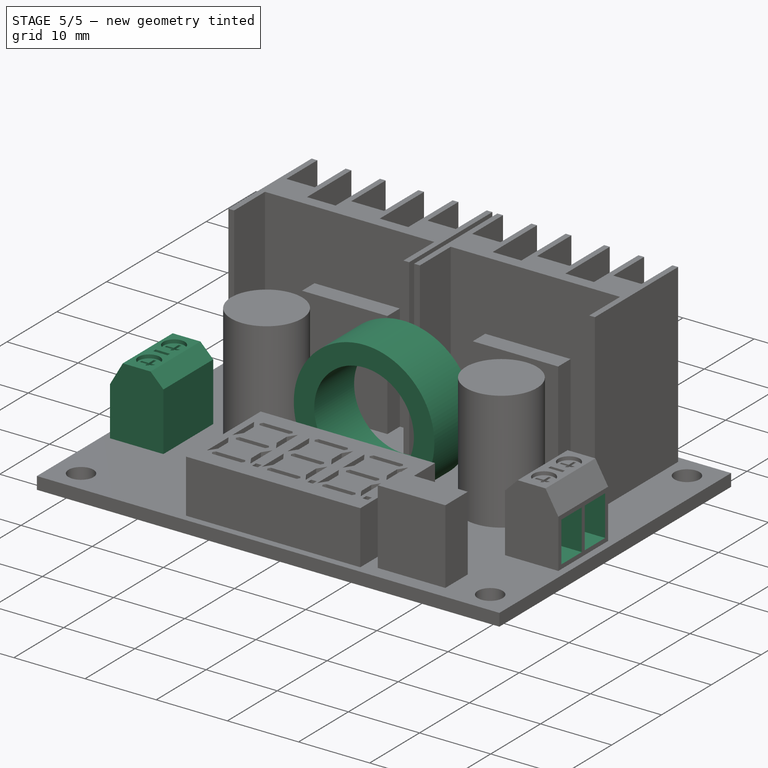
[diagram: stage 5 of 5 — iso view after this stage's code; geometry added in this stage tinted green]
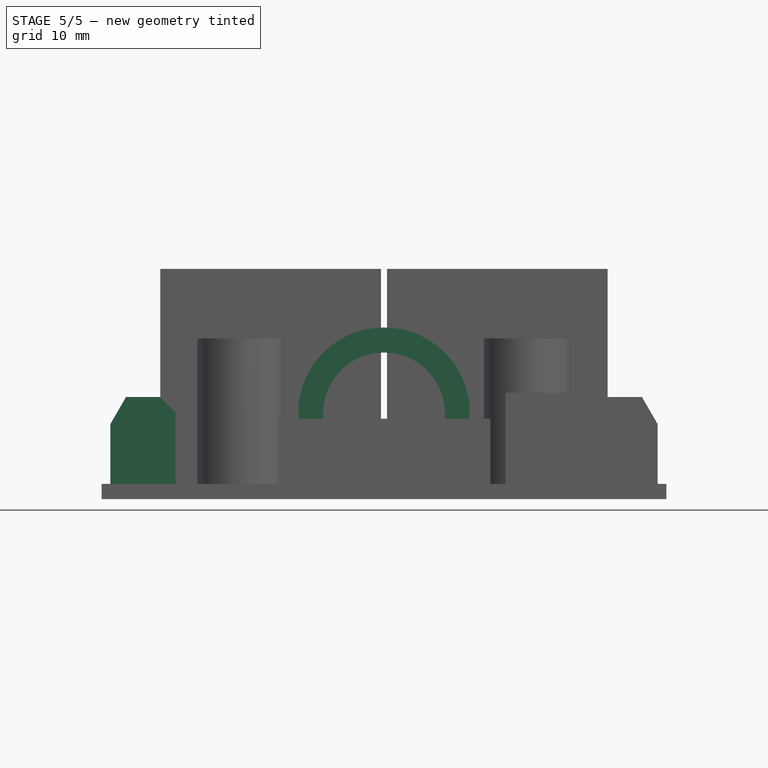
[diagram: stage 5 of 5 — front view after this stage's code; geometry added in this stage tinted green]
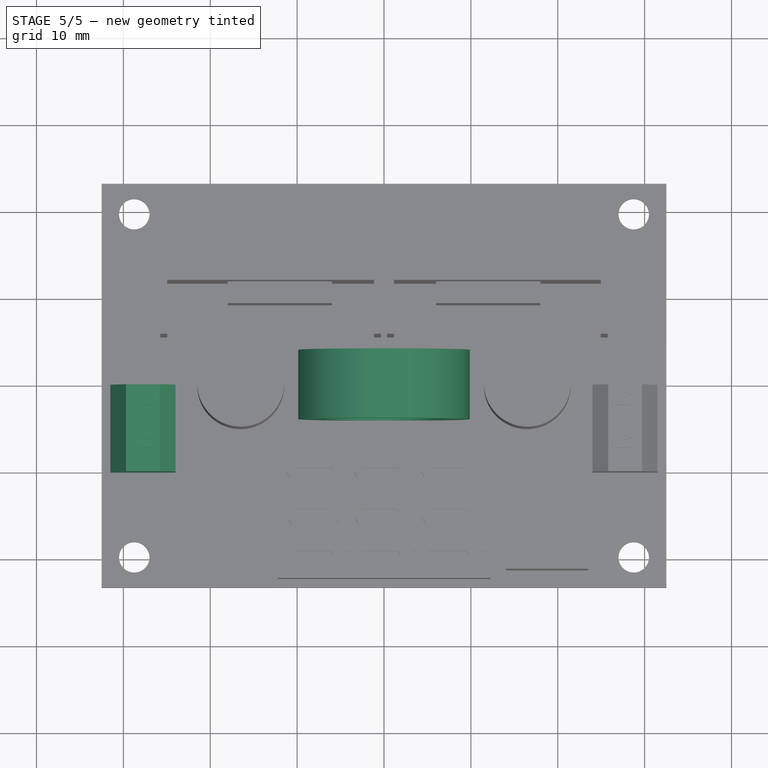
[diagram: stage 5 of 5 — top view after this stage's code; geometry added in this stage tinted green]
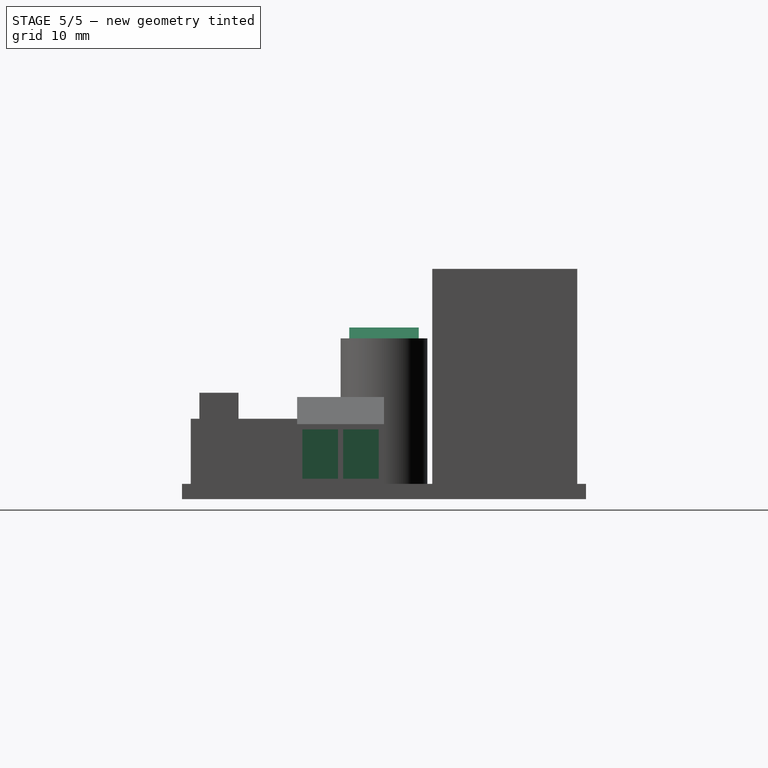
[diagram: stage 5 of 5 — right view after this stage's code; geometry added in this stage tinted green]
FEATURE [Sketcher::SketchObject] Sketch012
  ArcFitTolerance = 1e-06
  AttachmentSupport = -> [Pocket004]
  ExternalGeometry = -> [Pocket004]
  FullyConstrained = true
  MakeInternals = false
  MapMode = 5
  Placement = pos=(31.5,0,0) rot=(0.57735,0.57735,0.57735;2.0944rad)
  sketch-geometry (8):
    g0: LineSegment StartX=-9.4 StartY=8.03231 StartZ=0 EndX=-9.4 EndY=2.35 EndZ=0
    g1: LineSegment StartX=-9.4 StartY=2.35 StartZ=0 EndX=-5.3 EndY=2.35 EndZ=0
    g2: LineSegment StartX=-5.3 StartY=2.35 StartZ=0 EndX=-5.3 EndY=8.03231 EndZ=0
    g3: LineSegment StartX=-5.3 StartY=8.03231 StartZ=0 EndX=-9.4 EndY=8.03231 EndZ=0
    g4: LineSegment StartX=-4.7 StartY=8.03231 StartZ=0 EndX=-4.7 EndY=2.35 EndZ=0
    g5: LineSegment StartX=-4.7 StartY=2.35 StartZ=0 EndX=-0.6 EndY=2.35 EndZ=0
    g6: LineSegment StartX=-0.6 StartY=2.35 StartZ=0 EndX=-0.6 EndY=8.03231 EndZ=0
    g7: LineSegment StartX=-0.6 StartY=8.03231 StartZ=0 EndX=-4.7 EndY=8.03231 EndZ=0
  constraints (25):
    c: Coincident(g0,g1)
    c: Coincident(g1,g2)
    c: Coincident(g2,g3)
    c: Coincident(g3,g0)
    c: Vertical(g0)
    c: Vertical(g2)
    c: Horizontal(g1)
    c: Horizontal(g3)
    c: Coincident(g4,g5)
    c: Coincident(g5,g6)
    c: Coincident(g6,g7)
    c: Coincident(g7,g4)
    c: Vertical(g4)
    c: Vertical(g6)
    c: Horizontal(g5)
    c: Horizontal(g7)
    c: DistanceX(g5,g-1) = 0.6
    c: DistanceY(g-3,g0) = 0.6
    c: Horizontal(g1,g4)
    c: Equal(g3,g7)
    c: Equal(g4,g2)
    c: DistanceX(g-4) = -10
    c: DistanceX(g-4,g0) = 0.6
    c: DistanceX(g1,g4) = 0.6
    c: DistanceY(g0,g-4) = 0.6
FEATURE [PartDesign::Pocket] Pocket005
  BaseFeature = -> Pocket004
  Direction = (-1,0,0)
  Length = 3.6
  Length2 = 5
  Profile = -> Sketch012
  ReferenceAxis = -> Sketch012 [N_Axis]
  Refine = true
  Suppressed = false
  Type = 0
FEATURE [PartDesign::Mirrored] Mirrored001
  BaseFeature = -> Pocket005
  MirrorPlane = -> Sketch008 [V_Axis]
  Originals = -> [Pad006,Pocket002,Pocket003,Pocket004,Pocket005]
  Refine = true
  Suppressed = false
  TransformMode = 0
FEATURE [Sketcher::SketchObject] Sketch013
  ArcFitTolerance = 1e-06
  AttachmentSupport = -> [XZ_Plane]
  ExternalGeometry = -> [Mirrored001]
  FullyConstrained = true
  MakeInternals = false
  MapMode = 2
  Placement = pos=(0,0,0) rot=(1,0,0;1.5708rad)
  sketch-geometry (3):
    g0: Circle CenterX=0 CenterY=9.875 CenterZ=0 NormalX=0 NormalY=0 NormalZ=1 AngleXU=0 Radius=9.875
    g1: Circle CenterX=0 CenterY=9.875 CenterZ=0 NormalX=0 NormalY=0 NormalZ=1 AngleXU=0 Radius=7
    g2: GeomPoint X=0 Y=19.75 Z=0
  constraints (7):
    c: PointOnObject(g0,g-2)
    c: Coincident(g1,g0)
    c: Radius(g1) = 7
    c: PointOnObject(g2,g0)
    c: PointOnObject(g2,g-2)
    c: DistanceY(g-3,g2) = 18
    c: Tangent(g-1,g0)
FEATURE [PartDesign::Pad] Pad007
  BaseFeature = -> Mirrored001
  Direction = (0,-1,2e-16)
  Length = 4
  Length2 = 4
  Profile = -> Sketch013
  ReferenceAxis = -> Sketch013 [N_Axis]
  Refine = true
  Suppressed = false
  Type = 4
FEATURE [PartDesign::Body] Body  label="regulator_2"
  AllowCompound = false
  Group = -> [Sketch,Pad,Sketch001,Pocket,Sketch002,Pad001,Sketch003,Pad002,Sketch004,Pad003,Sketch005,Pocket001,LinearPattern,Sketch006,Pad004,Sketch007,Pad005,Mirrored,Sketch008,Pad006,Sketch009,Pocket002,Sketch010,Pocket003,Sketch011,Pocket004,Sketch012,Pocket005,Mirrored001,Sketch013,Pad007]
  Origin = -> Origin
  Tip = -> Pad007
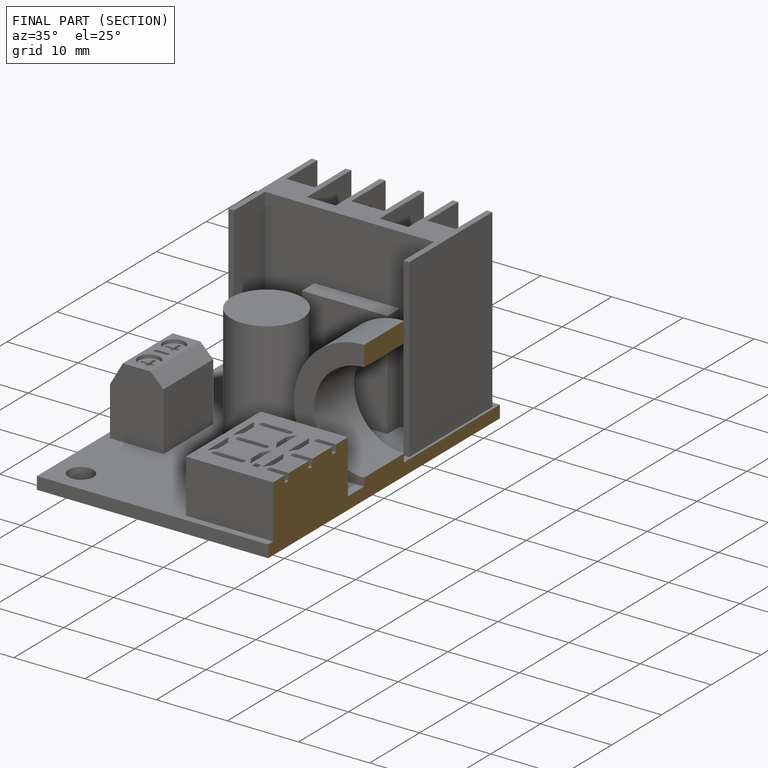
[diagram: finished part — half-section view (interior)]
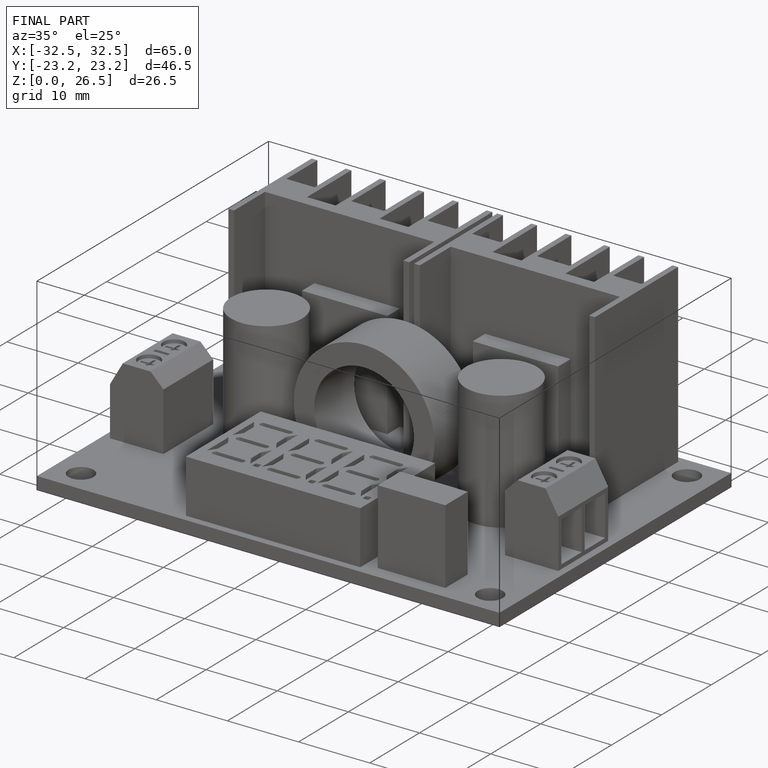
[diagram: finished part — iso view with bounding-box wireframe]
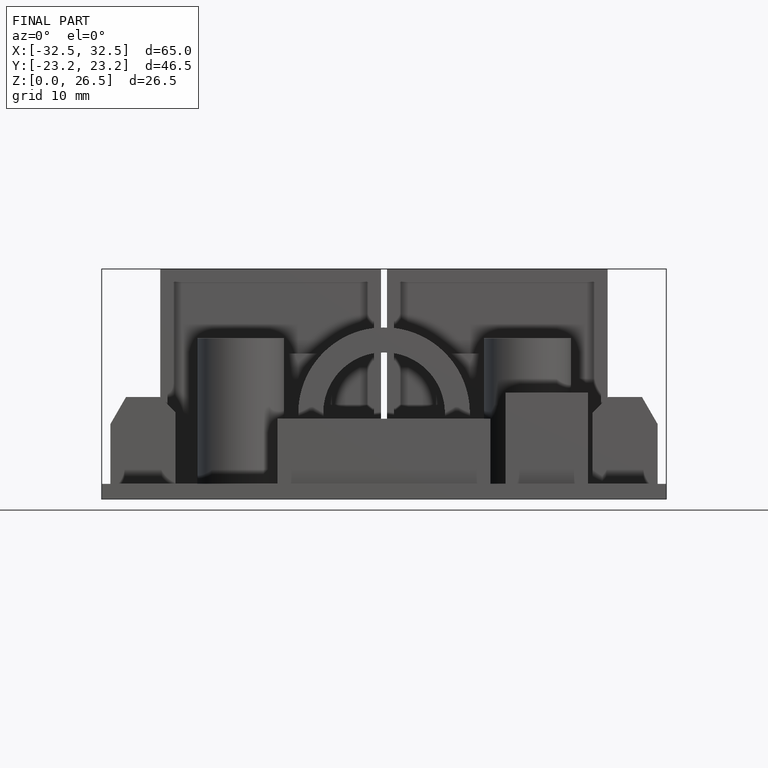
[diagram: finished part — front view with bounding-box wireframe]
